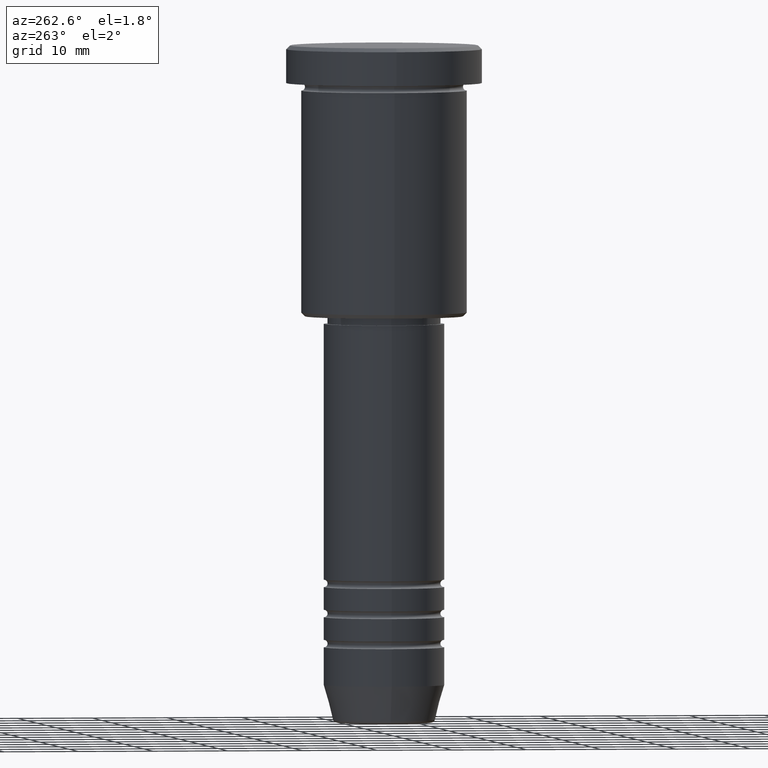
[diagram: clean part render]
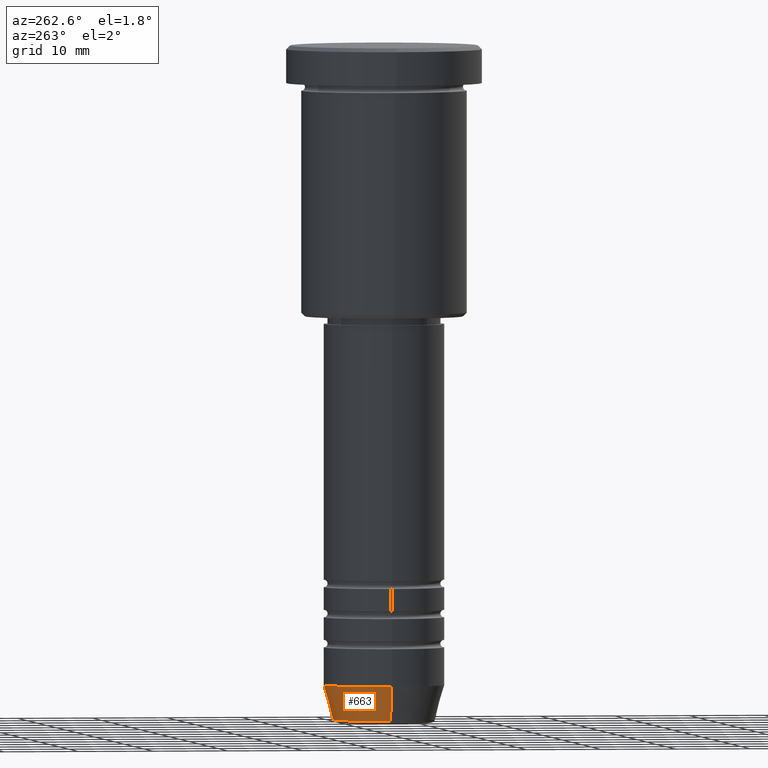
[diagram: same view with one face highlighted and labeled with its STEP entity id]
A machine part, auxiliary view. The second image highlights one B-rep face of the part: STEP entity #663.
In plain terms, the highlighted conical surface has half-angle 15 deg.
Its self-contained STEP definition (entity closure, byte-faithful):
#22 = CARTESIAN_POINT ( 'NONE',  ( 0.000000000000000000, 0.000000000000000000, -84.99999999999998579 ) ) ;
#115 = LINE ( 'NONE', #302, #1166 ) ;
#144 = VERTEX_POINT ( 'NONE', #465 ) ;
#151 = CARTESIAN_POINT ( 'NONE',  ( 8.000000000000000000, 0.000000000000000000, -84.99999999999998579 ) ) ;
#181 = VERTEX_POINT ( 'NONE', #502 ) ;
#183 = EDGE_CURVE ( 'NONE', #463, #244, #115, .T. ) ;
#196 = EDGE_CURVE ( 'NONE', #144, #181, #344, .T. ) ;
#197 = AXIS2_PLACEMENT_3D ( 'NONE', #248, #972, #698 ) ;
#211 = AXIS2_PLACEMENT_3D ( 'NONE', #22, #564, #827 ) ;
#244 = VERTEX_POINT ( 'NONE', #151 ) ;
#248 = CARTESIAN_POINT ( 'NONE',  ( 0.000000000000000000, 0.000000000000000000, -89.62940952255125637 ) ) ;
#302 = CARTESIAN_POINT ( 'NONE',  ( 8.000000000000000000, 0.000000000000000000, -84.99999999999998579 ) ) ;
#308 = ORIENTED_EDGE ( 'NONE', *, *, #1126, .T. ) ;
#344 = LINE ( 'NONE', #631, #587 ) ;
#395 = CONICAL_SURFACE ( 'NONE', #211, 8.000000000000000000, 0.2617993877991502405 ) ;
#463 = VERTEX_POINT ( 'NONE', #886 ) ;
#465 = CARTESIAN_POINT ( 'NONE',  ( -6.759553456999437770, 9.037619948979306213E-16, -89.62940952255125637 ) ) ;
#477 = CIRCLE ( 'NONE', #197, 6.759553456999436882 ) ;
#485 = ORIENTED_EDGE ( 'NONE', *, *, #196, .T. ) ;
#502 = CARTESIAN_POINT ( 'NONE',  ( -8.000000000000000000, 9.797174393178825657E-16, -84.99999999999998579 ) ) ;
#520 = DIRECTION ( 'NONE',  ( 1.000000000000000000, 0.000000000000000000, 0.000000000000000000 ) ) ;
#564 = DIRECTION ( 'NONE',  ( -0.000000000000000000, -0.000000000000000000, 1.000000000000000000 ) ) ;
#587 = VECTOR ( 'NONE', #1177, 1000.000000000000114 ) ;
#631 = CARTESIAN_POINT ( 'NONE',  ( -8.000000000000000000, 9.797174393178825657E-16, -84.99999999999998579 ) ) ;
#638 = CIRCLE ( 'NONE', #1053, 8.000000000000000000 ) ;
#663 = ADVANCED_FACE ( 'NONE', ( #744 ), #395, .T. ) ;
#698 = DIRECTION ( 'NONE',  ( 1.000000000000000000, 0.000000000000000000, 0.000000000000000000 ) ) ;
#713 = DIRECTION ( 'NONE',  ( -0.000000000000000000, -0.000000000000000000, 1.000000000000000000 ) ) ;
#718 = EDGE_LOOP ( 'NONE', ( #308, #485, #999, #846 ) ) ;
#744 = FACE_OUTER_BOUND ( 'NONE', #718, .T. ) ;
#775 = EDGE_CURVE ( 'NONE', #244, #181, #638, .T. ) ;
#812 = CARTESIAN_POINT ( 'NONE',  ( 0.000000000000000000, 0.000000000000000000, -84.99999999999998579 ) ) ;
#827 = DIRECTION ( 'NONE',  ( 1.000000000000000000, 0.000000000000000000, 0.000000000000000000 ) ) ;
#846 = ORIENTED_EDGE ( 'NONE', *, *, #183, .F. ) ;
#886 = CARTESIAN_POINT ( 'NONE',  ( 6.759553456999436882, 0.000000000000000000, -89.62940952255125637 ) ) ;
#972 = DIRECTION ( 'NONE',  ( -0.000000000000000000, -0.000000000000000000, 1.000000000000000000 ) ) ;
#999 = ORIENTED_EDGE ( 'NONE', *, *, #775, .F. ) ;
#1042 = DIRECTION ( 'NONE',  ( 0.2588190451025214611, 0.000000000000000000, 0.9659258262890679791 ) ) ;
#1053 = AXIS2_PLACEMENT_3D ( 'NONE', #812, #713, #520 ) ;
#1126 = EDGE_CURVE ( 'NONE', #463, #144, #477, .T. ) ;
#1166 = VECTOR ( 'NONE', #1042, 1000.000000000000114 ) ;
#1177 = DIRECTION ( 'NONE',  ( -0.2588190451025214611, 3.169619151431774186E-17, 0.9659258262890679791 ) ) ;